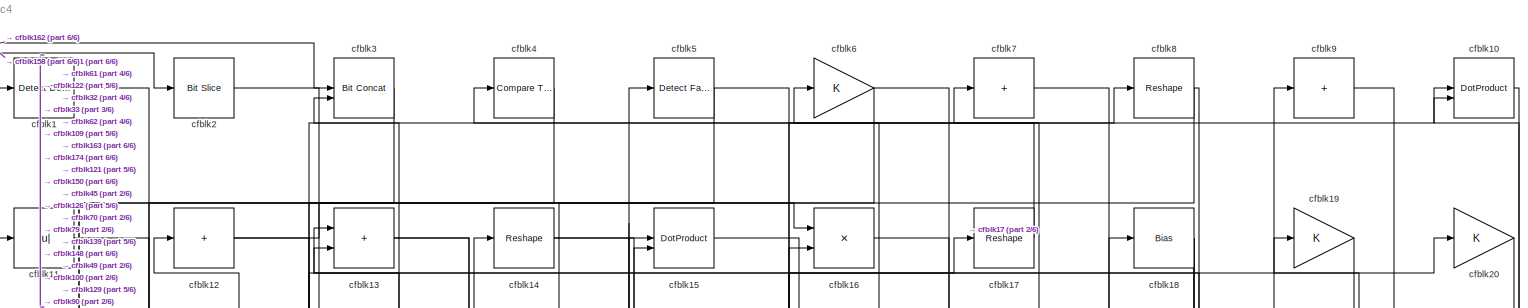
[diagram: root canvas - part 1/6, full width, top band]
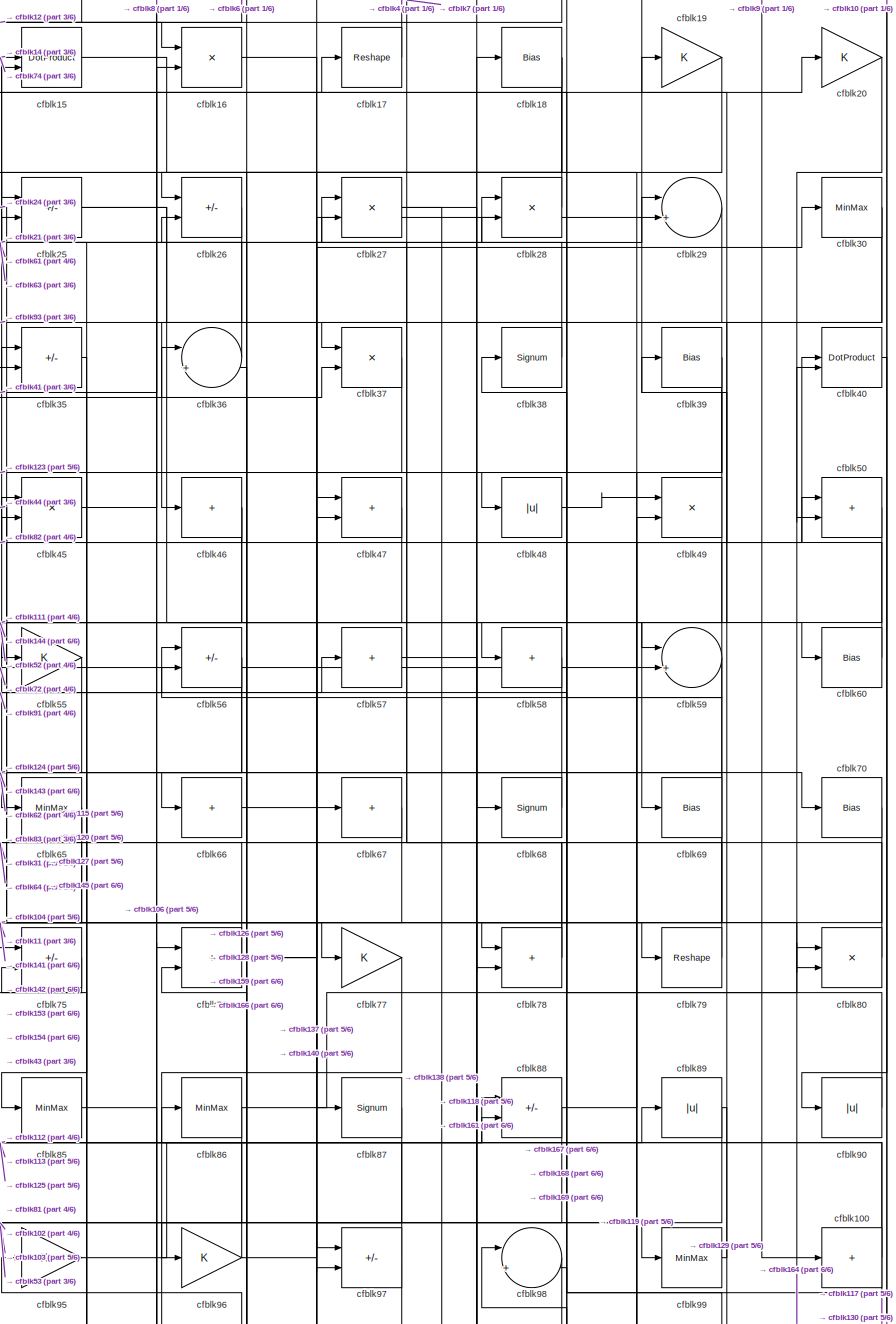
[diagram: root canvas - part 2/6, top right region]
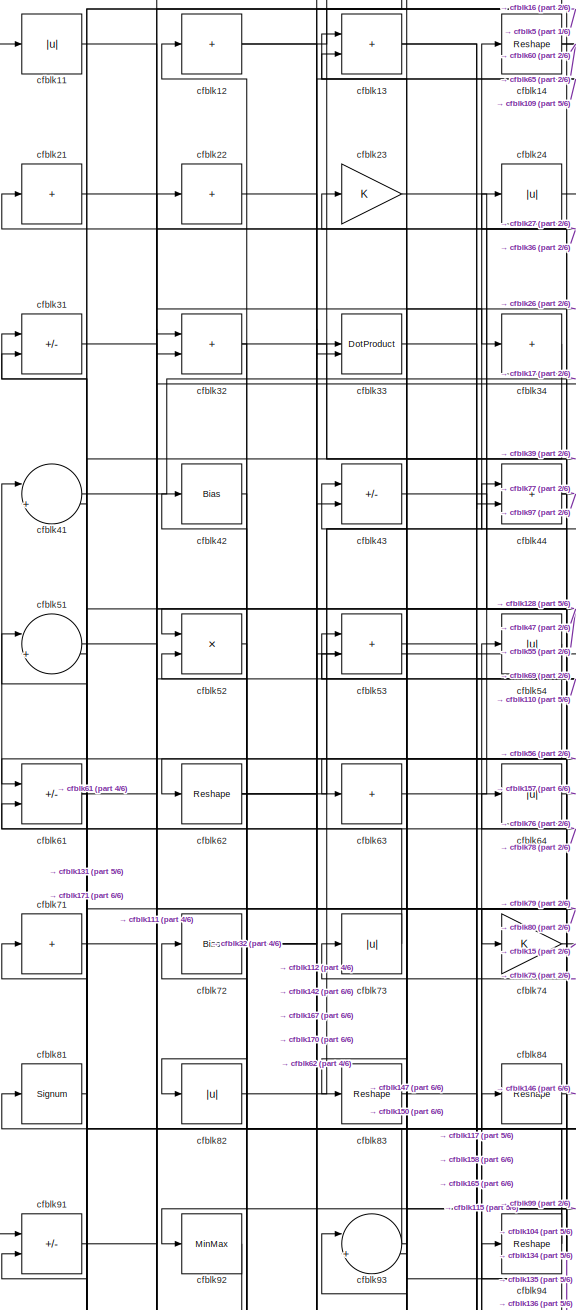
[diagram: root canvas - part 3/6, top left region]
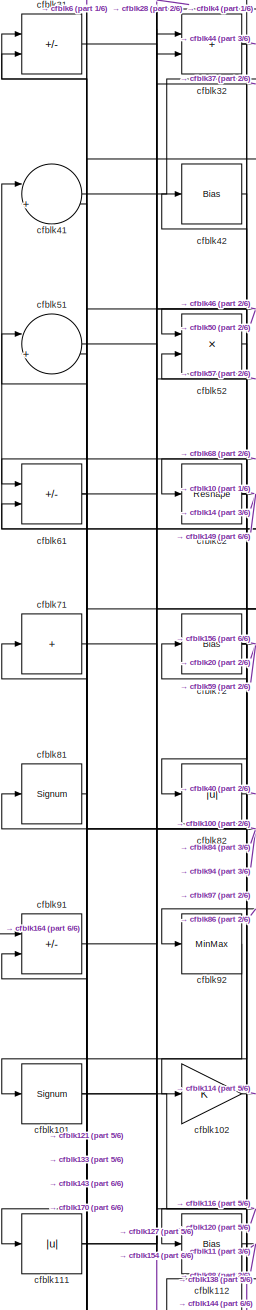
[diagram: root canvas - part 4/6, middle left region]
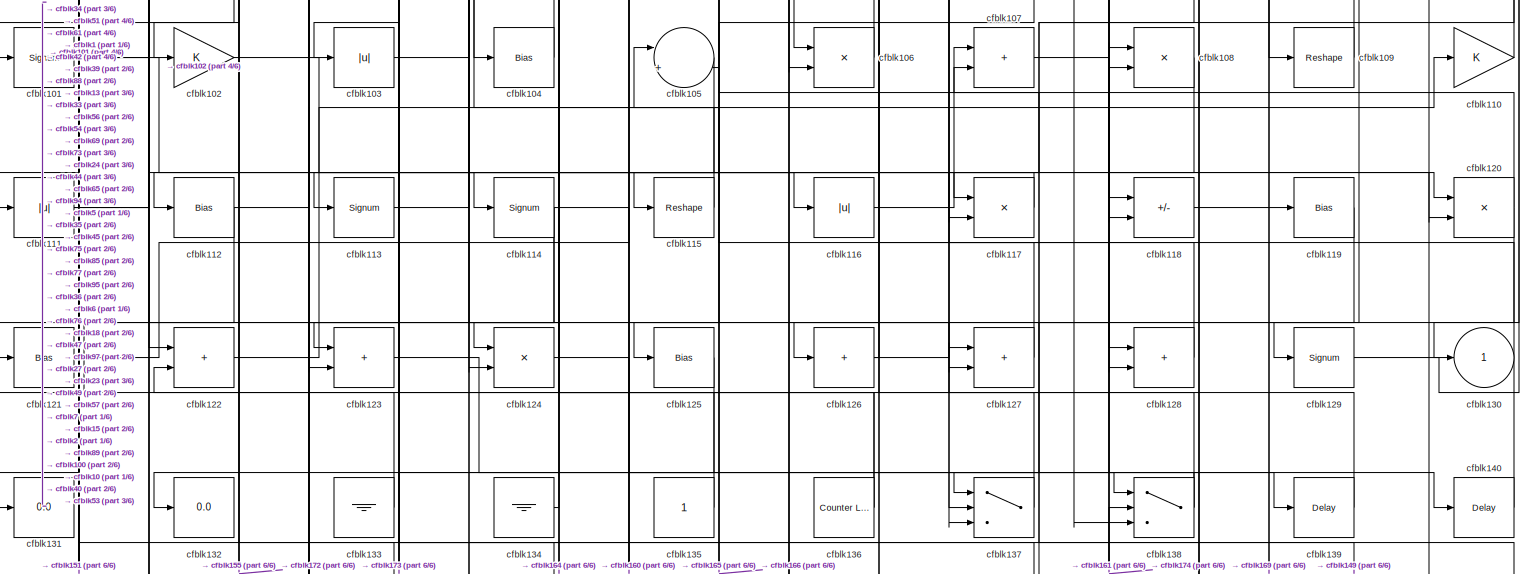
[diagram: root canvas - part 5/6, full width, bottom band]
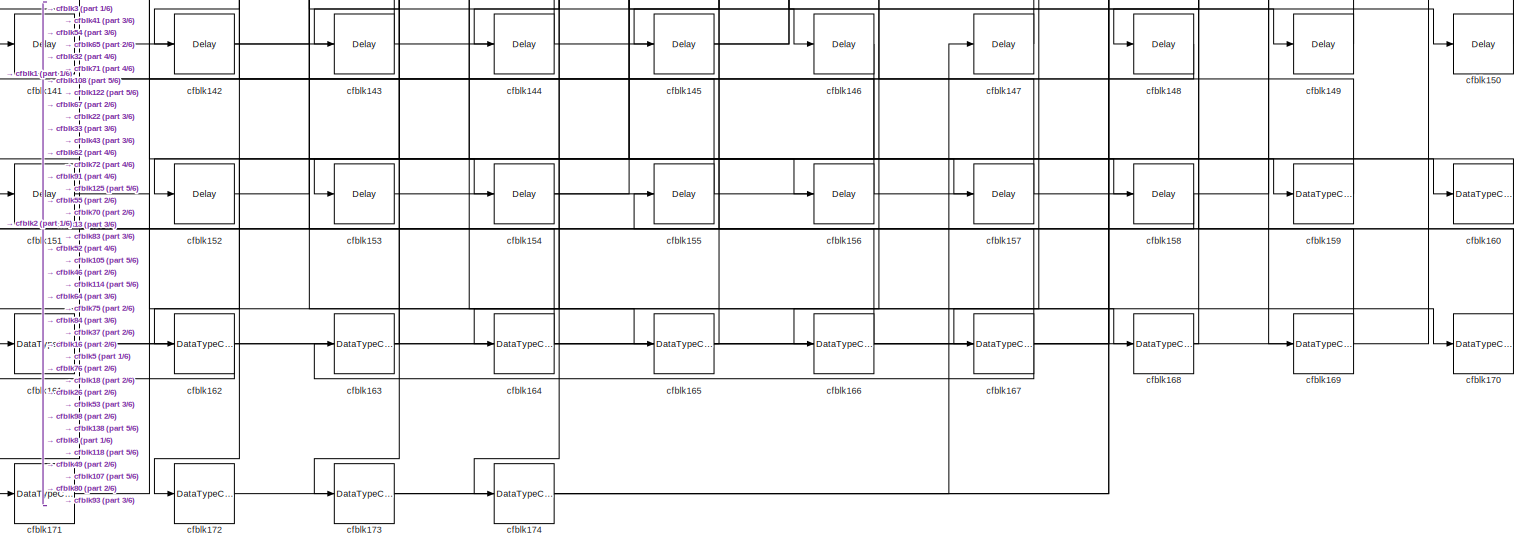
[diagram: root canvas - part 6/6, full width, bottom band]
MODEL slx_5c3edc749dc4
KIND model
CONFIG AbsTol = auto
CONFIG EnableMultiTasking = off
CONFIG FixedStep = auto
CONFIG MaxStep = auto
CONFIG MinStep = auto
CONFIG RelTol = 1e-3
CONFIG SampleTimeConstraint = Unconstrained
CONFIG SolverName = VariableStepAuto
CONFIG StartTime = 0.0
CONFIG StopTime = 10.0
BLOCK [Reference] cfblk1  REF=simulink/Logic and Bit
Operations/Detect
Decrease
  LibrarySourceBlock = hdlsllib/Logic and Bit\nOperations/Detect\nDecrease
  SourceBlock = simulink/Logic and Bit\nOperations/Detect\nDecrease
  SourceType = Detect Decrease
BLOCK [DotProduct] cfblk10
  OutDataTypeStr = Inherit: Inherit via internal rule
BLOCK [Sum] cfblk100
  IconShape = rectangular
  Inputs = +
BLOCK [Signum] cfblk101
BLOCK [Gain] cfblk102
BLOCK [Abs] cfblk103
  SaturateOnIntegerOverflow = off
BLOCK [Bias] cfblk104
  Bias = 0.0
  SaturateOnIntegerOverflow = off
BLOCK [Sum] cfblk105
  Inputs = |++
BLOCK [Product] cfblk106
  Inputs = */
  RndMeth = Zero
  SaturateOnIntegerOverflow = on
BLOCK [Sum] cfblk107
  IconShape = rectangular
BLOCK [Product] cfblk108
  Inputs = */
  RndMeth = Zero
  SaturateOnIntegerOverflow = on
BLOCK [Reshape] cfblk109
BLOCK [Abs] cfblk11
  SaturateOnIntegerOverflow = off
BLOCK [Gain] cfblk110
BLOCK [Abs] cfblk111
  SaturateOnIntegerOverflow = off
BLOCK [Bias] cfblk112
  Bias = 0.0
  SaturateOnIntegerOverflow = off
BLOCK [Signum] cfblk113
BLOCK [Signum] cfblk114
BLOCK [Reshape] cfblk115
BLOCK [Abs] cfblk116
  SaturateOnIntegerOverflow = off
BLOCK [Product] cfblk117
  Inputs = */
  RndMeth = Zero
  SaturateOnIntegerOverflow = on
BLOCK [Sum] cfblk118
  IconShape = rectangular
  Inputs = +-
BLOCK [Bias] cfblk119
  Bias = 0.0
  SaturateOnIntegerOverflow = off
BLOCK [Sum] cfblk12
  IconShape = rectangular
  Inputs = +
BLOCK [Product] cfblk120
  Inputs = */
  RndMeth = Zero
  SaturateOnIntegerOverflow = on
BLOCK [Bias] cfblk121
  Bias = 0.0
  SaturateOnIntegerOverflow = off
BLOCK [Sum] cfblk122
  IconShape = rectangular
BLOCK [Sum] cfblk123
  IconShape = rectangular
BLOCK [Product] cfblk124
  Inputs = */
  RndMeth = Zero
  SaturateOnIntegerOverflow = on
BLOCK [Bias] cfblk125
  Bias = 0.0
  SaturateOnIntegerOverflow = off
BLOCK [Sum] cfblk126
  IconShape = rectangular
  Inputs = +
BLOCK [Sum] cfblk127
  IconShape = rectangular
BLOCK [Sum] cfblk128
  IconShape = rectangular
BLOCK [Signum] cfblk129
BLOCK [Sum] cfblk13
  IconShape = rectangular
BLOCK [Outport] cfblk130
  VectorParamsAs1DForOutWhenUnconnected = off
BLOCK [Display] cfblk131
  Decimation = 1
BLOCK [Display] cfblk132
  Decimation = 1
BLOCK [Ground] cfblk133
BLOCK [Ground] cfblk134
BLOCK [Constant] cfblk135
  SampleTime = -1
BLOCK [Reference] cfblk136  REF=hdlsllib/Sources/Counter
Limited
  SourceBlock = hdlsllib/Sources/Counter\nLimited
  SourceType = Counter Limited
BLOCK [Switch] cfblk137
  InputSameDT = off
  SaturateOnIntegerOverflow = off
BLOCK [Switch] cfblk138
  InputSameDT = off
  SaturateOnIntegerOverflow = off
BLOCK [Delay] cfblk139
  InputPortMap = u0
  SampleTime = 1
BLOCK [Reshape] cfblk14
BLOCK [Delay] cfblk140
  InputPortMap = u0
  SampleTime = 1
BLOCK [Delay] cfblk141
  InputPortMap = u0
  SampleTime = 1
BLOCK [Delay] cfblk142
  InputPortMap = u0
  SampleTime = 1
BLOCK [Delay] cfblk143
  InputPortMap = u0
  SampleTime = 1
BLOCK [Delay] cfblk144
  InputPortMap = u0
  SampleTime = 1
BLOCK [Delay] cfblk145
  InputPortMap = u0
  SampleTime = 1
BLOCK [Delay] cfblk146
  InputPortMap = u0
  SampleTime = 1
BLOCK [Delay] cfblk147
  InputPortMap = u0
  SampleTime = 1
BLOCK [Delay] cfblk148
  InputPortMap = u0
  SampleTime = 1
BLOCK [Delay] cfblk149
  InputPortMap = u0
  SampleTime = 1
BLOCK [DotProduct] cfblk15
  OutDataTypeStr = Inherit: Inherit via internal rule
BLOCK [Delay] cfblk150
  InputPortMap = u0
  SampleTime = 1
BLOCK [Delay] cfblk151
  InputPortMap = u0
  SampleTime = 1
BLOCK [Delay] cfblk152
  InputPortMap = u0
  SampleTime = 1
BLOCK [Delay] cfblk153
  InputPortMap = u0
  SampleTime = 1
BLOCK [Delay] cfblk154
  InputPortMap = u0
  SampleTime = 1
BLOCK [Delay] cfblk155
  InputPortMap = u0
  SampleTime = 1
BLOCK [Delay] cfblk156
  InputPortMap = u0
  SampleTime = 1
BLOCK [Delay] cfblk157
  InputPortMap = u0
  SampleTime = 1
BLOCK [Delay] cfblk158
  InputPortMap = u0
  SampleTime = 1
BLOCK [DataTypeConversion] cfblk159
  OutDataTypeStr = uint8
  RndMeth = Floor
  SaturateOnIntegerOverflow = off
BLOCK [Product] cfblk16
  Inputs = */
  RndMeth = Zero
  SaturateOnIntegerOverflow = on
BLOCK [DataTypeConversion] cfblk160
  OutDataTypeStr = uint8
  RndMeth = Floor
  SaturateOnIntegerOverflow = off
BLOCK [DataTypeConversion] cfblk161
  RndMeth = Floor
  SaturateOnIntegerOverflow = off
BLOCK [DataTypeConversion] cfblk162
  OutDataTypeStr = uint8
  RndMeth = Floor
  SaturateOnIntegerOverflow = off
BLOCK [DataTypeConversion] cfblk163
  OutDataTypeStr = uint8
  RndMeth = Floor
  SaturateOnIntegerOverflow = off
BLOCK [DataTypeConversion] cfblk164
  RndMeth = Floor
  SaturateOnIntegerOverflow = off
BLOCK [DataTypeConversion] cfblk165
  OutDataTypeStr = uint8
  RndMeth = Floor
  SaturateOnIntegerOverflow = off
BLOCK [DataTypeConversion] cfblk166
  OutDataTypeStr = uint8
  RndMeth = Floor
  SaturateOnIntegerOverflow = off
BLOCK [DataTypeConversion] cfblk167
  RndMeth = Floor
  SaturateOnIntegerOverflow = off
BLOCK [DataTypeConversion] cfblk168
  OutDataTypeStr = uint8
  RndMeth = Floor
  SaturateOnIntegerOverflow = off
BLOCK [DataTypeConversion] cfblk169
  OutDataTypeStr = uint8
  RndMeth = Floor
  SaturateOnIntegerOverflow = off
BLOCK [Reshape] cfblk17
BLOCK [DataTypeConversion] cfblk170
  RndMeth = Floor
  SaturateOnIntegerOverflow = off
BLOCK [DataTypeConversion] cfblk171
  OutDataTypeStr = uint8
  RndMeth = Floor
  SaturateOnIntegerOverflow = off
BLOCK [DataTypeConversion] cfblk172
  OutDataTypeStr = uint8
  RndMeth = Floor
  SaturateOnIntegerOverflow = off
BLOCK [DataTypeConversion] cfblk173
  OutDataTypeStr = uint8
  RndMeth = Floor
  SaturateOnIntegerOverflow = off
BLOCK [DataTypeConversion] cfblk174
  OutDataTypeStr = uint8
  RndMeth = Floor
  SaturateOnIntegerOverflow = off
BLOCK [Bias] cfblk18
  Bias = 0.0
  SaturateOnIntegerOverflow = off
BLOCK [Gain] cfblk19
BLOCK [Reference] cfblk2  REF=hdlsllib/Logic and Bit
Operations/Bit Slice
  SourceBlock = hdlsllib/Logic and Bit\nOperations/Bit Slice
  SourceType = Bit Slice
BLOCK [Gain] cfblk20
BLOCK [Sum] cfblk21
  IconShape = rectangular
  Inputs = +
BLOCK [Sum] cfblk22
  IconShape = rectangular
  Inputs = +
BLOCK [Gain] cfblk23
BLOCK [Abs] cfblk24
  SaturateOnIntegerOverflow = off
BLOCK [Sum] cfblk25
  IconShape = rectangular
  Inputs = +-
BLOCK [Sum] cfblk26
  IconShape = rectangular
  Inputs = +-
BLOCK [Product] cfblk27
  Inputs = */
  RndMeth = Zero
  SaturateOnIntegerOverflow = on
BLOCK [Product] cfblk28
  Inputs = */
  RndMeth = Zero
  SaturateOnIntegerOverflow = on
BLOCK [Sum] cfblk29
  Inputs = |++
BLOCK [Reference] cfblk3  REF=hdlsllib/Logic and Bit
Operations/Bit Concat
  SourceBlock = hdlsllib/Logic and Bit\nOperations/Bit Concat
  SourceType = Bit Concat
BLOCK [MinMax] cfblk30
BLOCK [Sum] cfblk31
  IconShape = rectangular
  Inputs = +-
BLOCK [Sum] cfblk32
  IconShape = rectangular
BLOCK [DotProduct] cfblk33
  OutDataTypeStr = Inherit: Inherit via internal rule
BLOCK [Sum] cfblk34
  IconShape = rectangular
  Inputs = +
BLOCK [Sum] cfblk35
  IconShape = rectangular
  Inputs = +-
BLOCK [Sum] cfblk36
  Inputs = |++
BLOCK [Product] cfblk37
  Inputs = */
  RndMeth = Zero
  SaturateOnIntegerOverflow = on
BLOCK [Signum] cfblk38
BLOCK [Bias] cfblk39
  Bias = 0.0
  SaturateOnIntegerOverflow = off
BLOCK [Reference] cfblk4  REF=hdlsllib/Logic and Bit
Operations/Compare
To Zero
  SourceBlock = hdlsllib/Logic and Bit\nOperations/Compare\nTo Zero
  SourceType = Compare To Zero
BLOCK [DotProduct] cfblk40
  OutDataTypeStr = Inherit: Inherit via internal rule
BLOCK [Sum] cfblk41
  Inputs = |++
BLOCK [Bias] cfblk42
  Bias = 0.0
  SaturateOnIntegerOverflow = off
BLOCK [Sum] cfblk43
  IconShape = rectangular
  Inputs = +-
BLOCK [Sum] cfblk44
  IconShape = rectangular
BLOCK [Product] cfblk45
  Inputs = */
  RndMeth = Zero
  SaturateOnIntegerOverflow = on
BLOCK [Sum] cfblk46
  IconShape = rectangular
  Inputs = +
BLOCK [Sum] cfblk47
  IconShape = rectangular
BLOCK [Abs] cfblk48
  SaturateOnIntegerOverflow = off
BLOCK [Product] cfblk49
  Inputs = */
  RndMeth = Zero
  SaturateOnIntegerOverflow = on
BLOCK [Reference] cfblk5  REF=hdlsllib/Logic and Bit
Operations/Detect Fall
Nonpositive
  SourceBlock = hdlsllib/Logic and Bit\nOperations/Detect Fall\nNonpositive
  SourceType = Detect Fall Nonpositive
BLOCK [Sum] cfblk50
  IconShape = rectangular
BLOCK [Sum] cfblk51
  Inputs = |++
BLOCK [Product] cfblk52
  Inputs = */
  RndMeth = Zero
  SaturateOnIntegerOverflow = on
BLOCK [Sum] cfblk53
  IconShape = rectangular
BLOCK [Abs] cfblk54
  SaturateOnIntegerOverflow = off
BLOCK [Gain] cfblk55
BLOCK [Sum] cfblk56
  IconShape = rectangular
  Inputs = +-
BLOCK [Sum] cfblk57
  IconShape = rectangular
  Inputs = +
BLOCK [Sum] cfblk58
  IconShape = rectangular
  Inputs = +
BLOCK [Sum] cfblk59
  Inputs = |++
BLOCK [Gain] cfblk6
BLOCK [Bias] cfblk60
  Bias = 0.0
  SaturateOnIntegerOverflow = off
BLOCK [Sum] cfblk61
  IconShape = rectangular
  Inputs = +-
BLOCK [Reshape] cfblk62
BLOCK [Sum] cfblk63
  IconShape = rectangular
  Inputs = +
BLOCK [Abs] cfblk64
  SaturateOnIntegerOverflow = off
BLOCK [MinMax] cfblk65
BLOCK [Sum] cfblk66
  IconShape = rectangular
  Inputs = +
BLOCK [Sum] cfblk67
  IconShape = rectangular
  Inputs = +
BLOCK [Signum] cfblk68
BLOCK [Bias] cfblk69
  Bias = 0.0
  SaturateOnIntegerOverflow = off
BLOCK [Sum] cfblk7
  IconShape = rectangular
  Inputs = +
BLOCK [Bias] cfblk70
  Bias = 0.0
  SaturateOnIntegerOverflow = off
BLOCK [Sum] cfblk71
  IconShape = rectangular
  Inputs = +
BLOCK [Bias] cfblk72
  Bias = 0.0
  SaturateOnIntegerOverflow = off
BLOCK [Abs] cfblk73
  SaturateOnIntegerOverflow = off
BLOCK [Gain] cfblk74
BLOCK [Sum] cfblk75
  IconShape = rectangular
  Inputs = +-
BLOCK [Sum] cfblk76
  IconShape = rectangular
BLOCK [Gain] cfblk77
BLOCK [Sum] cfblk78
  IconShape = rectangular
BLOCK [Reshape] cfblk79
BLOCK [Reshape] cfblk8
BLOCK [Product] cfblk80
  Inputs = */
  RndMeth = Zero
  SaturateOnIntegerOverflow = on
BLOCK [Signum] cfblk81
BLOCK [Abs] cfblk82
  SaturateOnIntegerOverflow = off
BLOCK [Reshape] cfblk83
BLOCK [Reshape] cfblk84
BLOCK [MinMax] cfblk85
BLOCK [MinMax] cfblk86
BLOCK [Signum] cfblk87
BLOCK [Sum] cfblk88
  IconShape = rectangular
  Inputs = +-
BLOCK [Abs] cfblk89
  SaturateOnIntegerOverflow = off
BLOCK [Sum] cfblk9
  IconShape = rectangular
  Inputs = +
BLOCK [Abs] cfblk90
  SaturateOnIntegerOverflow = off
BLOCK [Sum] cfblk91
  IconShape = rectangular
  Inputs = +-
BLOCK [MinMax] cfblk92
BLOCK [Sum] cfblk93
  Inputs = |++
BLOCK [Reshape] cfblk94
BLOCK [Gain] cfblk95
BLOCK [Gain] cfblk96
BLOCK [Sum] cfblk97
  IconShape = rectangular
  Inputs = +-
BLOCK [Sum] cfblk98
  Inputs = |++
BLOCK [MinMax] cfblk99
NET cfblk100:1 -> cfblk117:1, cfblk35:1, cfblk81:1
NET cfblk101:1 -> cfblk116:1, cfblk120:2
LINE cfblk102:1 -> cfblk114:1
LINE cfblk103:1 -> cfblk56:2
LINE cfblk104:1 -> cfblk73:1
LINE cfblk105:1 -> cfblk164:1
LINE cfblk106:1 -> cfblk95:1
LINE cfblk107:1 -> cfblk118:1
LINE cfblk108:1 -> cfblk172:1
LINE cfblk109:1 -> cfblk13:1
LINE cfblk10:1 -> cfblk90:1
LINE cfblk110:1 -> cfblk53:1
NET cfblk111:1 -> cfblk37:2, cfblk84:1
NET cfblk112:1 -> cfblk11:1, cfblk88:2
LINE cfblk113:1 -> cfblk88:1
NET cfblk114:1 -> cfblk123:2, cfblk151:1, cfblk160:1
LINE cfblk115:1 -> cfblk54:1
LINE cfblk116:1 -> cfblk107:1
LINE cfblk117:1 -> cfblk113:1
LINE cfblk118:1 -> cfblk169:1
LINE cfblk119:1 -> cfblk137:1
LINE cfblk11:1 -> cfblk79:1
NET cfblk120:1 -> cfblk126:1, cfblk45:1
LINE cfblk121:1 -> cfblk5:1
LINE cfblk122:1 -> cfblk110:1
LINE cfblk123:1 -> cfblk138:1
LINE cfblk124:1 -> cfblk140:1
LINE cfblk125:1 -> cfblk173:1
NET cfblk126:1 -> cfblk47:2, cfblk6:1
LINE cfblk127:1 -> cfblk75:2
LINE cfblk128:1 -> cfblk36:1
LINE cfblk129:1 -> cfblk10:1
NET cfblk12:1 -> cfblk16:1, cfblk80:2
LINE cfblk133:1 -> cfblk51:1
LINE cfblk134:1 -> cfblk44:1
LINE cfblk135:1 -> cfblk94:1
NET cfblk136:1 -> cfblk13:2, cfblk24:1
LINE cfblk137:1 -> cfblk76:2
NET cfblk138:1 -> cfblk132:1, cfblk42:1
LINE cfblk139:1 -> cfblk127:1
NET cfblk13:1 -> cfblk117:2, cfblk158:1
LINE cfblk140:1 -> cfblk47:1
LINE cfblk141:1 -> cfblk16:2
LINE cfblk142:1 -> cfblk43:2
LINE cfblk143:1 -> cfblk91:2
LINE cfblk144:1 -> cfblk52:2
LINE cfblk145:1 -> cfblk76:1
LINE cfblk146:1 -> cfblk162:1
LINE cfblk147:1 -> cfblk53:2
LINE cfblk148:1 -> cfblk1:1
LINE cfblk149:1 -> cfblk107:2
NET cfblk14:1 -> cfblk60:1, cfblk65:1
LINE cfblk150:1 -> cfblk93:1
LINE cfblk151:1 -> cfblk168:1
LINE cfblk152:1 -> cfblk159:1
LINE cfblk153:1 -> cfblk49:2
LINE cfblk154:1 -> cfblk75:1
LINE cfblk155:1 -> cfblk122:2
LINE cfblk156:1 -> cfblk32:1
LINE cfblk157:1 -> cfblk41:2
LINE cfblk158:1 -> cfblk2:1
LINE cfblk159:1 -> cfblk26:2
LINE cfblk15:1 -> cfblk119:1
LINE cfblk160:1 -> cfblk152:1
NET cfblk161:1 -> cfblk138:2, cfblk18:1
LINE cfblk162:1 -> cfblk3:1
LINE cfblk163:1 -> cfblk3:2
NET cfblk164:1 -> cfblk80:1, cfblk91:1
LINE cfblk165:1 -> cfblk105:1
LINE cfblk166:1 -> cfblk105:2
NET cfblk167:1 -> cfblk163:1, cfblk33:1
LINE cfblk168:1 -> cfblk98:1
LINE cfblk169:1 -> cfblk98:2
LINE cfblk16:1 -> cfblk48:1
NET cfblk170:1 -> cfblk155:1, cfblk71:1
LINE cfblk171:1 -> cfblk22:1
LINE cfblk172:1 -> cfblk147:1
LINE cfblk173:1 -> cfblk108:1
LINE cfblk174:1 -> cfblk108:2
LINE cfblk17:1 -> cfblk4:1
NET cfblk18:1 -> cfblk137:3, cfblk166:1, cfblk35:2
LINE cfblk19:1 -> cfblk26:1
LINE cfblk1:1 -> cfblk122:1
LINE cfblk20:1 -> cfblk50:2
LINE cfblk21:1 -> cfblk34:1
LINE cfblk22:1 -> cfblk170:1
LINE cfblk23:1 -> cfblk128:1
LINE cfblk24:1 -> cfblk97:1
NET cfblk25:1 -> cfblk58:1, cfblk87:1
LINE cfblk26:1 -> cfblk93:2
NET cfblk27:1 -> cfblk138:3, cfblk68:1
LINE cfblk28:1 -> cfblk25:1
LINE cfblk29:1 -> cfblk46:1
LINE cfblk2:1 -> cfblk109:1
NET cfblk30:1 -> cfblk37:1, cfblk59:1
LINE cfblk31:1 -> cfblk55:1
NET cfblk32:1 -> cfblk112:1, cfblk44:2
LINE cfblk33:1 -> cfblk128:2
LINE cfblk34:1 -> cfblk131:1
LINE cfblk35:1 -> cfblk115:1
LINE cfblk36:1 -> cfblk21:1
LINE cfblk37:1 -> cfblk145:1
LINE cfblk38:1 -> cfblk15:2
NET cfblk39:1 -> cfblk123:1, cfblk74:1
LINE cfblk3:1 -> cfblk161:1
LINE cfblk40:1 -> cfblk130:1
LINE cfblk41:1 -> cfblk17:1
LINE cfblk42:1 -> cfblk82:1
LINE cfblk43:1 -> cfblk69:1
NET cfblk44:1 -> cfblk77:1, cfblk97:2
LINE cfblk45:1 -> cfblk8:1
NET cfblk46:1 -> cfblk111:1, cfblk144:1, cfblk45:2
LINE cfblk47:1 -> cfblk63:1
LINE cfblk48:1 -> cfblk49:1
NET cfblk49:1 -> cfblk118:2, cfblk9:1
LINE cfblk4:1 -> cfblk32:2
LINE cfblk50:1 -> cfblk52:1
LINE cfblk51:1 -> cfblk127:2
LINE cfblk52:1 -> cfblk92:1
LINE cfblk53:1 -> cfblk99:1
LINE cfblk54:1 -> cfblk171:1
LINE cfblk55:1 -> cfblk143:1
NET cfblk56:1 -> cfblk124:2, cfblk83:1
LINE cfblk57:1 -> cfblk120:1
LINE cfblk58:1 -> cfblk85:1
NET cfblk59:1 -> cfblk25:2, cfblk56:1, cfblk78:1
NET cfblk5:1 -> cfblk150:1, cfblk33:2
LINE cfblk60:1 -> cfblk39:1
NET cfblk61:1 -> cfblk121:1, cfblk28:1
NET cfblk62:1 -> cfblk10:2, cfblk149:1, cfblk14:1
LINE cfblk63:1 -> cfblk27:1
LINE cfblk64:1 -> cfblk157:1
NET cfblk65:1 -> cfblk124:1, cfblk141:1
LINE cfblk66:1 -> cfblk30:1
LINE cfblk67:1 -> cfblk142:1
LINE cfblk68:1 -> cfblk62:1
NET cfblk69:1 -> cfblk104:1, cfblk28:2, cfblk66:1, cfblk78:2
NET cfblk6:1 -> cfblk61:1, cfblk70:1
LINE cfblk70:1 -> cfblk153:1
LINE cfblk71:1 -> cfblk154:1
NET cfblk72:1 -> cfblk156:1, cfblk20:1, cfblk59:2
LINE cfblk73:1 -> cfblk41:1
LINE cfblk74:1 -> cfblk15:1
LINE cfblk75:1 -> cfblk43:1
NET cfblk76:1 -> cfblk29:2, cfblk31:2, cfblk67:1
LINE cfblk77:1 -> cfblk106:1
NET cfblk78:1 -> cfblk36:2, cfblk64:1
LINE cfblk79:1 -> cfblk7:1
LINE cfblk7:1 -> cfblk139:1
LINE cfblk80:1 -> cfblk27:2
LINE cfblk81:1 -> cfblk51:2
LINE cfblk82:1 -> cfblk40:1
LINE cfblk83:1 -> cfblk165:1
LINE cfblk84:1 -> cfblk146:1
LINE cfblk85:1 -> cfblk106:2
NET cfblk86:1 -> cfblk102:1, cfblk40:2
LINE cfblk87:1 -> cfblk96:1
NET cfblk88:1 -> cfblk103:1, cfblk50:1
NET cfblk89:1 -> cfblk129:1, cfblk137:2
NET cfblk8:1 -> cfblk148:1, cfblk174:1
LINE cfblk90:1 -> cfblk38:1
LINE cfblk91:1 -> cfblk57:1
LINE cfblk92:1 -> cfblk101:1
NET cfblk93:1 -> cfblk12:1, cfblk23:1
NET cfblk94:1 -> cfblk31:1, cfblk61:2
LINE cfblk95:1 -> cfblk89:1
NET cfblk96:1 -> cfblk29:1, cfblk86:1
NET cfblk97:1 -> cfblk125:1, cfblk72:1
LINE cfblk98:1 -> cfblk167:1
LINE cfblk99:1 -> cfblk19:1
LINE cfblk9:1 -> cfblk100:1
note: NET lines group one-source signal fan-out (src -> all destinations, sorted); 1:1 wires keep LINE
